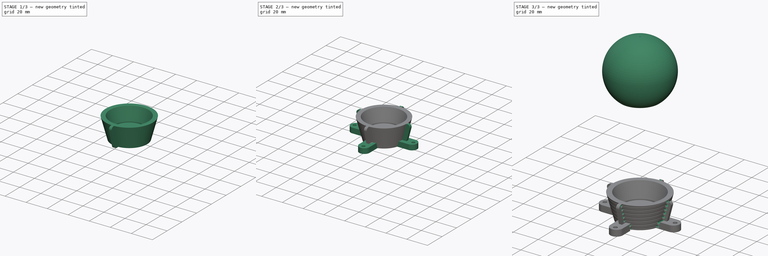
[diagram: build sequence overview — one tinted view per stage of 3, left to right]
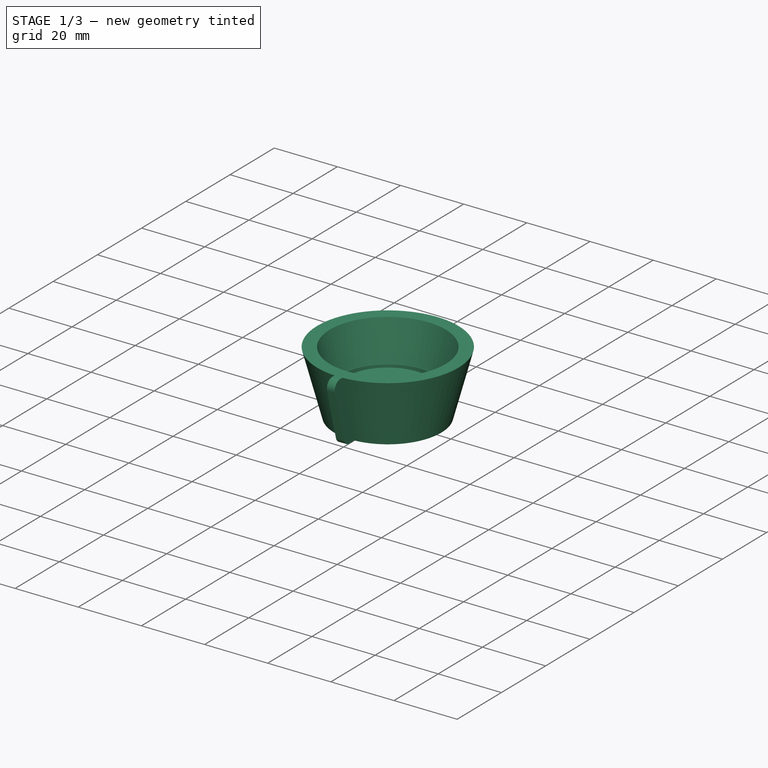
[diagram: stage 1 of 3 — iso view after this stage's code; geometry added in this stage tinted green]
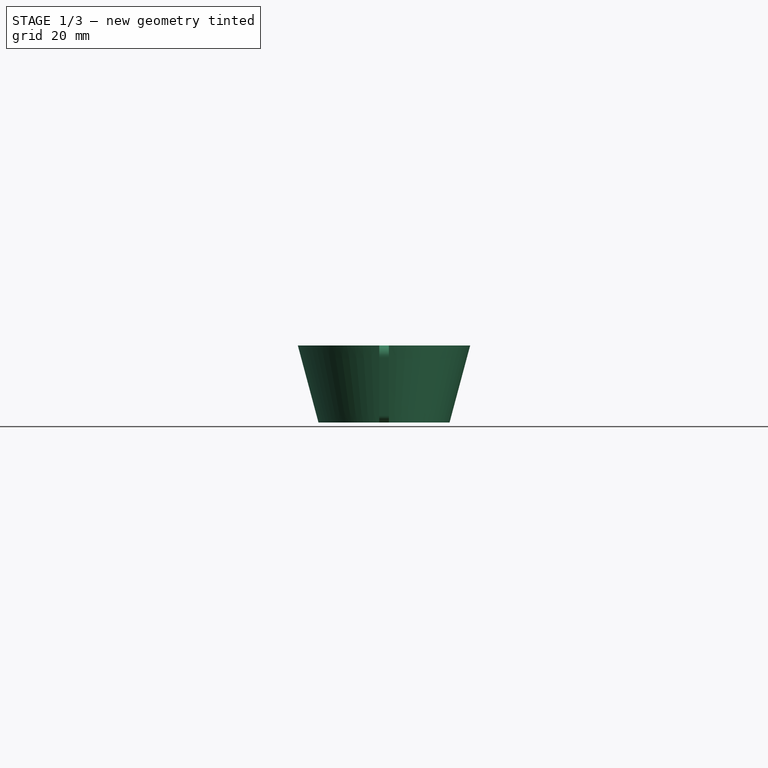
[diagram: stage 1 of 3 — front view after this stage's code; geometry added in this stage tinted green]
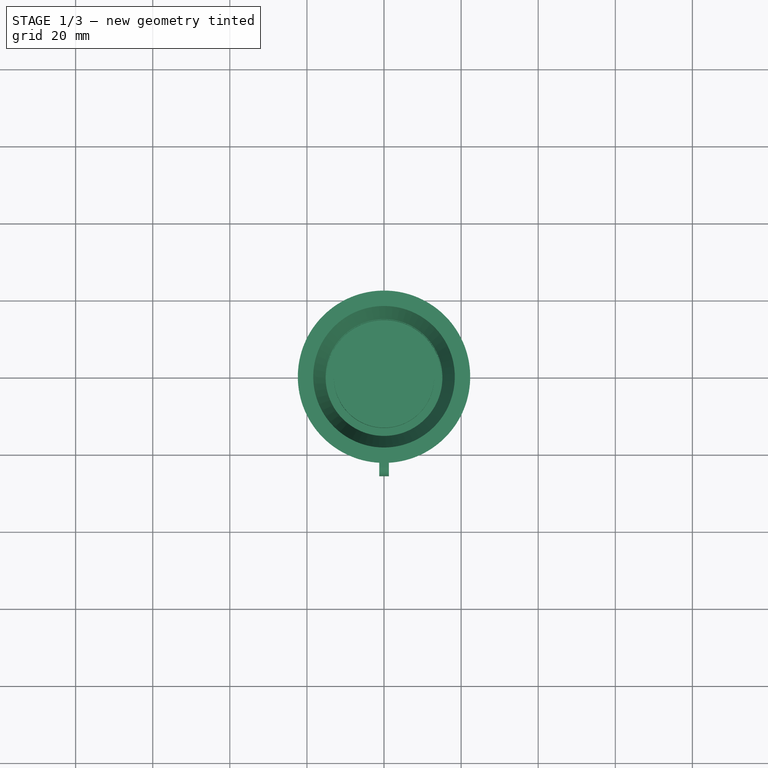
[diagram: stage 1 of 3 — top view after this stage's code; geometry added in this stage tinted green]
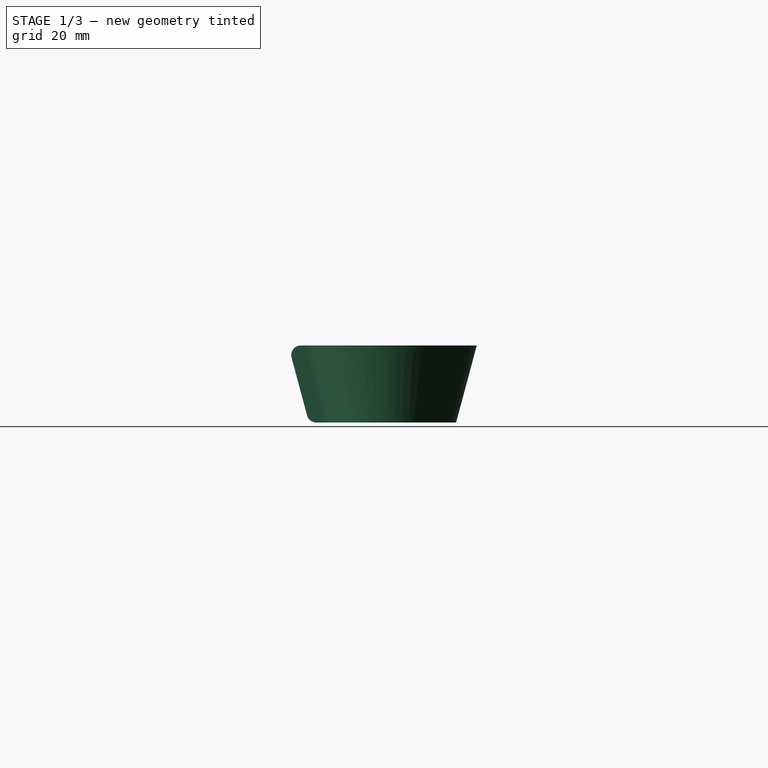
[diagram: stage 1 of 3 — right view after this stage's code; geometry added in this stage tinted green]
FCSTD DOCUMENT  (FreeCAD 0.21R33694 (Git))
Label: tc
License: All rights reserved
LicenseURL: https://en.wikipedia.org/wiki/All_rights_reserved
objects: Sketcher::SketchObject×6, PartDesign::Revolution×2, PartDesign::Body×2, PartDesign::Pad×2, PartDesign::PolarPattern×1, PartDesign::Pocket×1, PartDesign::SubtractiveHelix×1
note: 21 computed .brp shape members not serialized (recipe doc carries the construction recipe); baked Part::Feature solids carry a one-line shape summary decoded from their .brp

FEATURE [PartDesign::Body] Body  label="topload"
  Group = -> [Sketch,Revolution]
  Origin = -> Origin
  Tip = -> Revolution
FEATURE [Sketcher::SketchObject] Sketch001
  FullyConstrained = true
  MapMode = 5
  Placement = pos=(0,0,0) rot=(1,0,0;1.5708rad)
  Support = -> [XZ_Plane001]
  sketch-geometry (1):
    g0: Circle CenterX=-18 CenterY=-108 CenterZ=0 NormalX=0 NormalY=0 NormalZ=1 AngleXU=0 Radius=1.1
  constraints (3):
    c: Diameter(g0) = 2.2
    c: Distance(g0,g-2) = 18
    c: Distance(g0,g-1) = 108
FEATURE [Sketcher::SketchObject] Sketch002
  FullyConstrained = true
  MapMode = 5
  Placement = pos=(0,0,0) rot=(1,0,0;1.5708rad)
  Support = -> [XZ_Plane001]
  sketch-geometry (10):
    g0: LineSegment StartX=-18.359 StartY=-88 StartZ=0 EndX=-22.359 EndY=-88 EndZ=0
    g1: LineSegment StartX=0 StartY=-108 StartZ=0 EndX=-17 EndY=-108 EndZ=0
    g2: LineSegment StartX=-17 StartY=-108 StartZ=0 EndX=-22.359 EndY=-88 EndZ=0
    g3: LineSegment StartX=0 StartY=-108 StartZ=0 EndX=0 EndY=-100 EndZ=0
    g4: LineSegment StartX=-18.359 StartY=-88 StartZ=0 EndX=-15.1436 EndY=-100 EndZ=0
    g5: LineSegment StartX=-15.1436 StartY=-100 StartZ=0 EndX=-15 EndY=-100 EndZ=0
    g6: LineSegment StartX=-15 StartY=-100 StartZ=0 EndX=-15 EndY=-105 EndZ=0
    g7: LineSegment StartX=-15 StartY=-105 StartZ=0 EndX=-13 EndY=-105 EndZ=0
    g8: LineSegment StartX=-13 StartY=-105 StartZ=0 EndX=-13 EndY=-100 EndZ=0
    g9: LineSegment StartX=-13 StartY=-100 StartZ=0 EndX=0 EndY=-100 EndZ=0
  constraints (30):
    c: Horizontal(g0)
    c: Horizontal(g1)
    c: Coincident(g2,g1)
    c: Coincident(g2,g0)
    c: Coincident(g3,g1)
    c: Vertical(g3)
    c: Distance(g1) = 17
    c: Angle(g1,g2) = 1.8326
    c: Coincident(g5,g4)
    c: Horizontal(g5)
    c: Coincident(g6,g5)
    c: Vertical(g6)
    c: Horizontal(g7)
    c: Coincident(g8,g7)
    c: Vertical(g8)
    c: Coincident(g9,g8)
    c: Horizontal(g9)
    c: Coincident(g0,g4)
    c: Coincident(g3,g9)
    c: DistanceY(g1,g0) = 20
    c: Distance(g0) = 4
    c: Parallel(g2,g4)
    c: PointOnObject(g3,g-2)
    c: Distance(g5,g-2) = 15
    c: Distance(g4,g1) = 8
    c: Distance(g3) = 8
    c: Coincident(g7,g6)
    c: Distance(g6,g7) = 2
    c: Distance(g8) = 5
    c: Distance(g3,g-1) = 100
FEATURE [PartDesign::Revolution] Revolution001
  Angle = 360
  Axis = (0,-2e-16,1)
  Base = (0,0,0)
  Placement = pos=(0,0,0) rot=(1,0,0;1.5708rad)
  Profile = -> Sketch002
  ReferenceAxis = -> Sketch002 [V_Axis]
FEATURE [Sketcher::SketchObject] Sketch003
  FullyConstrained = true
  MapMode = 5
  Placement = pos=(0,0,0) rot=(0.57735,0.57735,0.57735;2.0944rad)
  Support = -> [YZ_Plane001]
  sketch-geometry (6):
    g0: LineSegment StartX=-21.359 StartY=-88 StartZ=0 EndX=-16 EndY=-108 EndZ=0
    g1: LineSegment StartX=-21.359 StartY=-88 StartZ=0 EndX=-23.2773 EndY=-88 EndZ=0
    g2: LineSegment StartX=-16 StartY=-108 StartZ=0 EndX=-19.2581 EndY=-108 EndZ=0
    g3: LineSegment StartX=-25.6921 StartY=-91.147 StartZ=0 EndX=-21.6729 EndY=-106.147 EndZ=0
    g4: ArcOfCircle CenterX=-23.2773 CenterY=-90.5 CenterZ=0 NormalX=0 NormalY=0 NormalZ=1 AngleXU=0 Radius=2.5 StartAngle=1.5708 EndAngle=3.40339
    g5: ArcOfCircle CenterX=-19.2581 CenterY=-105.5 CenterZ=0 NormalX=0 NormalY=0 NormalZ=1 AngleXU=0 Radius=2.5 StartAngle=3.40339 EndAngle=4.71239
  constraints (16):
    c: Distance(g0,g-2) = 16
    c: Distance(g0,g-1) = 108
    c: Angle(g-2,g0) = 0.261799
    c: Coincident(g1,g0)
    c: Horizontal(g1)
    c: Coincident(g2,g0)
    c: Horizontal(g2)
    c: Parallel(g0,g3)
    c: Tangent(g3,g4) = -1.5708
    c: Tangent(g1,g4) = -1.5708
    c: Tangent(g2,g5) = 1.5708
    c: Tangent(g3,g5) = -1.5708
    c: Diameter(g4) = 5
    c: Diameter(g5) = 5
    c: Distance(g3,g0) = 5
    c: Distance(g0,g2) = 20
FEATURE [PartDesign::Pad] Pad
  BaseFeature = -> Revolution001
  Direction = (1,-2e-16,3e-16)
  Length = 2.5
  Length2 = 10
  Midplane = true
  Placement = pos=(0,0,0) rot=(1,0,0;1.5708rad)
  Profile = -> Sketch003
  ReferenceAxis = -> Sketch003 [N_Axis]
  Type = 0
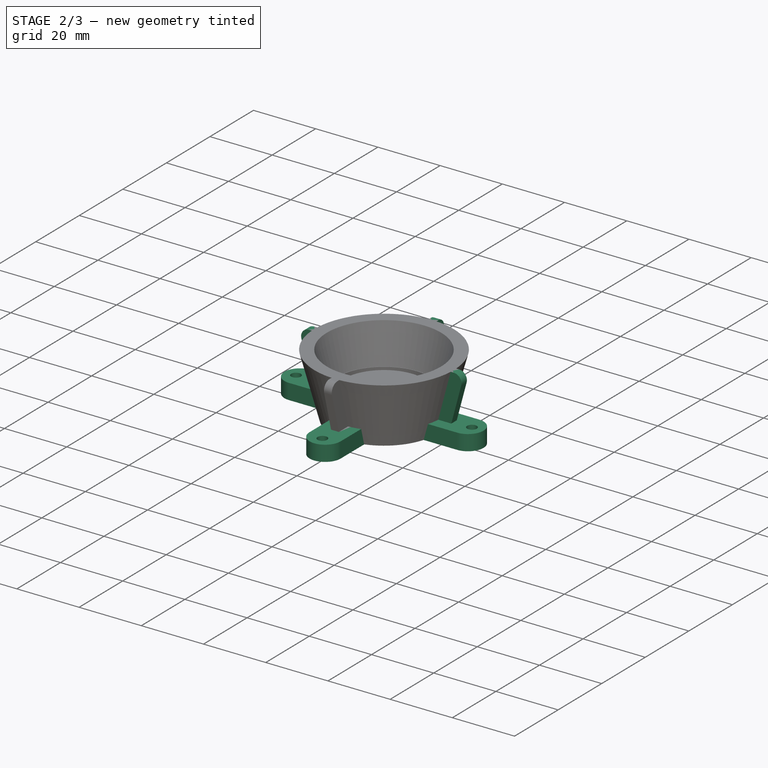
[diagram: stage 2 of 3 — iso view after this stage's code; geometry added in this stage tinted green]
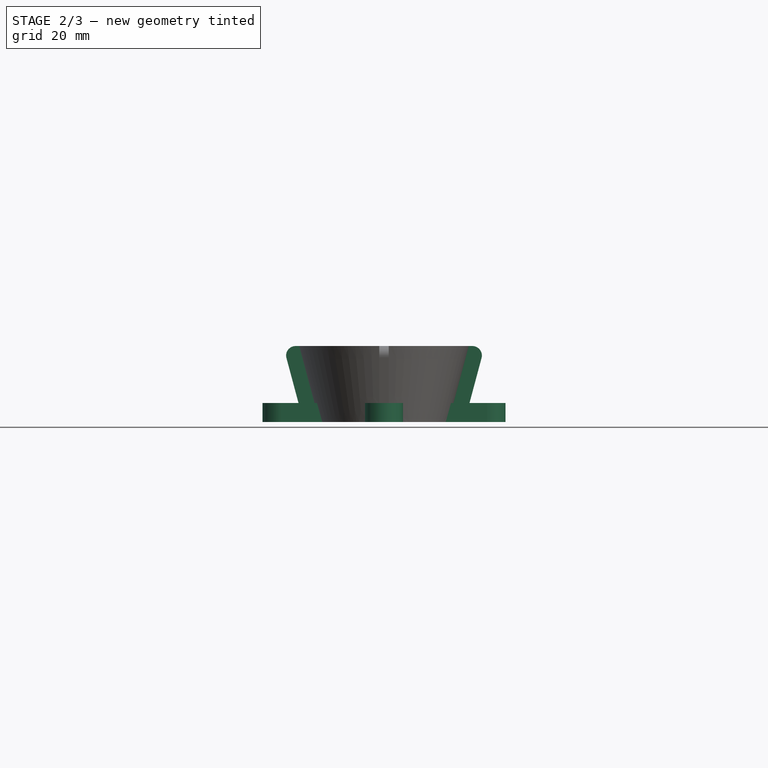
[diagram: stage 2 of 3 — front view after this stage's code; geometry added in this stage tinted green]
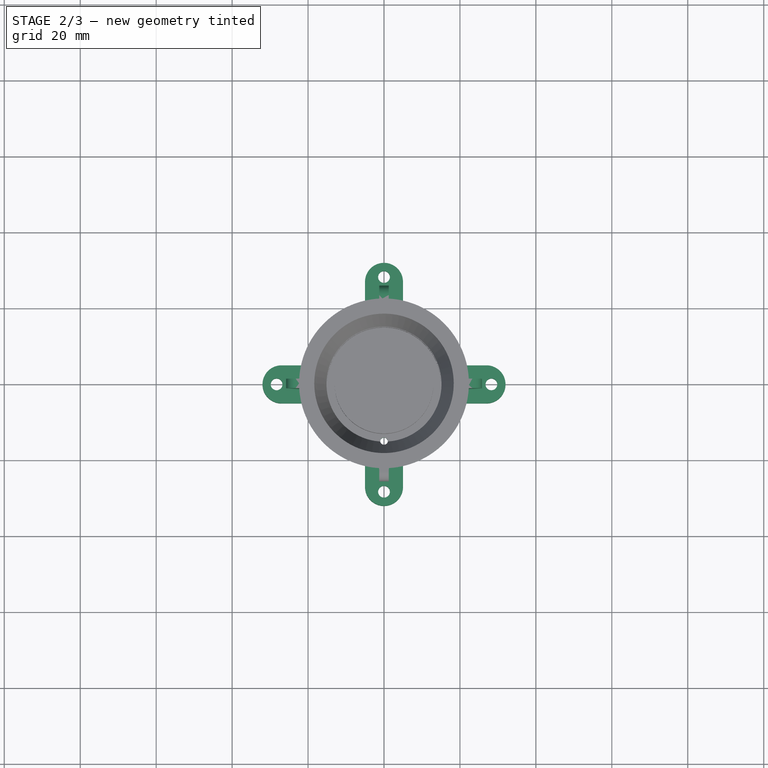
[diagram: stage 2 of 3 — top view after this stage's code; geometry added in this stage tinted green]
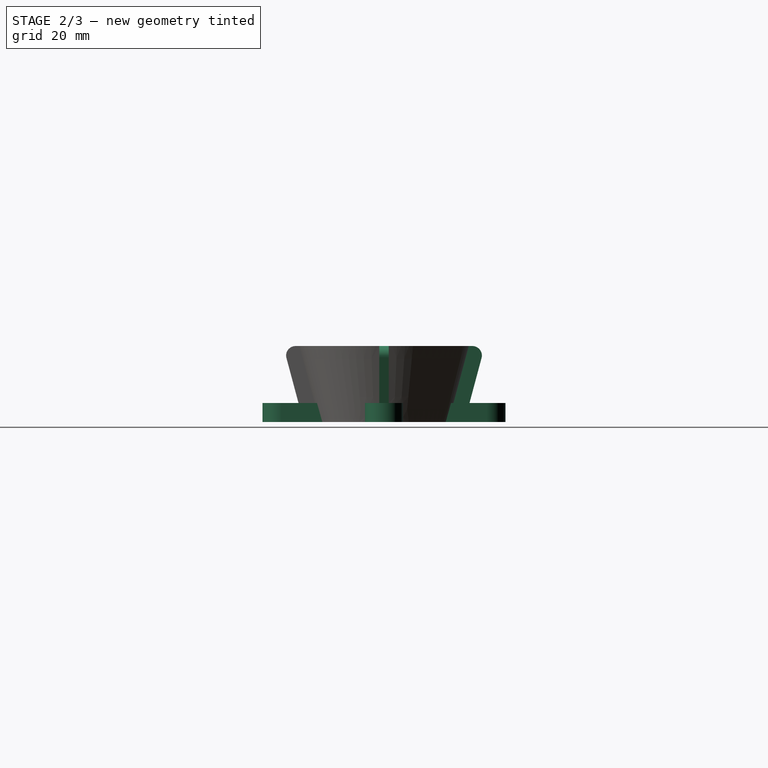
[diagram: stage 2 of 3 — right view after this stage's code; geometry added in this stage tinted green]
FEATURE [Sketcher::SketchObject] Sketch004
  AttachmentOffset = pos=(0,0,-108) rot=(0,0,1;0rad)
  FullyConstrained = true
  MapMode = 5
  Placement = pos=(0,0,-108) rot=(0,0,1;0rad)
  Support = -> [XY_Plane001]
  sketch-geometry (6):
    g0: Circle CenterX=2.4e-15 CenterY=-28.28 CenterZ=0 NormalX=0 NormalY=0 NormalZ=1 AngleXU=0 Radius=1.55
    g1: LineSegment StartX=0 StartY=0 StartZ=0 EndX=2.4e-15 EndY=-28.28 EndZ=0
    g2: ArcOfCircle CenterX=2.3e-15 CenterY=-27 CenterZ=0 NormalX=0 NormalY=0 NormalZ=1 AngleXU=0 Radius=5 StartAngle=3.14159 EndAngle=6.28319
    g3: LineSegment StartX=-5 StartY=-16.2481 StartZ=0 EndX=-5 EndY=-27 EndZ=0
    g4: LineSegment StartX=5 StartY=-27 StartZ=0 EndX=5 EndY=-16.2481 EndZ=0
    g5: LineSegment StartX=-5 StartY=-16.2481 StartZ=0 EndX=5 EndY=-16.2481 EndZ=0
  constraints (16):
    c: Diameter(g0) = 3.1
    c: Distance(g0,g-1) = 28.28
    c: Coincident(g1,g-1)
    c: Coincident(g0,g1)
    c: Angle(g1,g-1) = 1.5708
    c: Tangent(g3,g2) = -1.5708
    c: Tangent(g2,g4) = -1.5708
    c: PointOnObject(g2,g1)
    c: Diameter(g2) = 10
    c: Distance(g2,g1) = 27
    c: Horizontal(g5)
    c: Coincident(g4,g5)
    c: Coincident(g3,g5)
    c: Distance(g5) = 10
    c: Distance(g1,g4) = 17
    c: Distance(g1,g3) = 17
FEATURE [PartDesign::Pad] Pad001
  BaseFeature = -> Pad
  Direction = (0,0,1)
  Length = 5
  Length2 = 10
  Placement = pos=(0,0,0) rot=(1,0,0;1.5708rad)
  Profile = -> Sketch004
  ReferenceAxis = -> Sketch004 [N_Axis]
  Type = 0
FEATURE [PartDesign::PolarPattern] PolarPattern
  Angle = 360
  Axis = -> Z_Axis001
  BaseFeature = -> Pad001
  Occurrences = 4
  Originals = -> [Pad,Pad001]
  Placement = pos=(0,0,0) rot=(1,0,0;1.5708rad)
FEATURE [Sketcher::SketchObject] Sketch005
  FullyConstrained = true
  MapMode = 5
  Support = -> [XY_Plane001]
  sketch-geometry (1):
    g0: Circle CenterX=0 CenterY=-15 CenterZ=0 NormalX=0 NormalY=0 NormalZ=1 AngleXU=0 Radius=1
  constraints (3):
    c: PointOnObject(g0,g-2)
    c: Distance(g-1,g0) = 15
    c: Diameter(g0) = 2
FEATURE [PartDesign::Pocket] Pocket
  BaseFeature = -> PolarPattern
  Direction = (0,0,-1)
  Length = 200
  Length2 = 5
  Placement = pos=(0,0,0) rot=(1,0,0;1.5708rad)
  Profile = -> Sketch005
  ReferenceAxis = -> Sketch005 [N_Axis]
  Type = 0
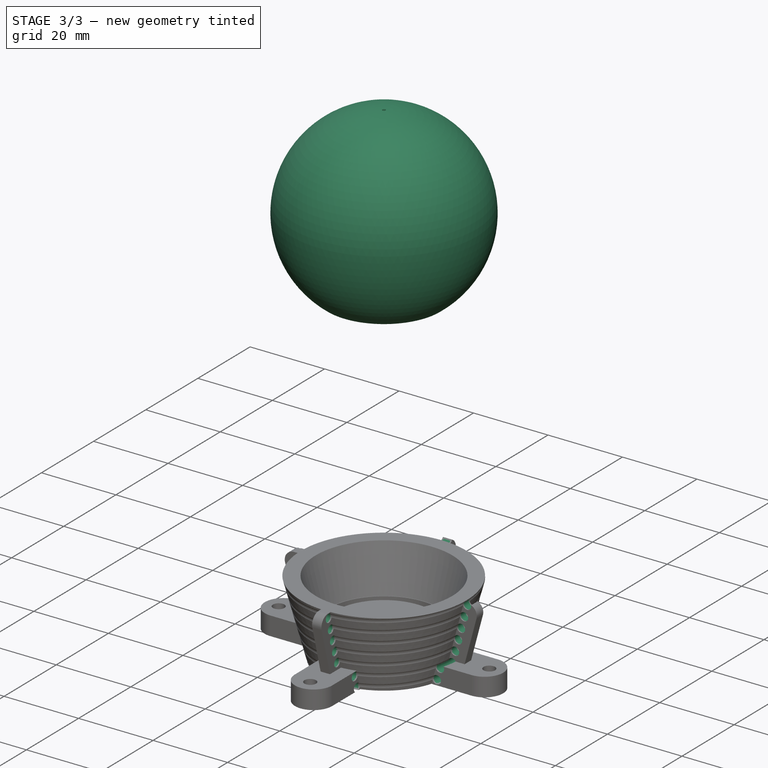
[diagram: stage 3 of 3 — iso view after this stage's code; geometry added in this stage tinted green]
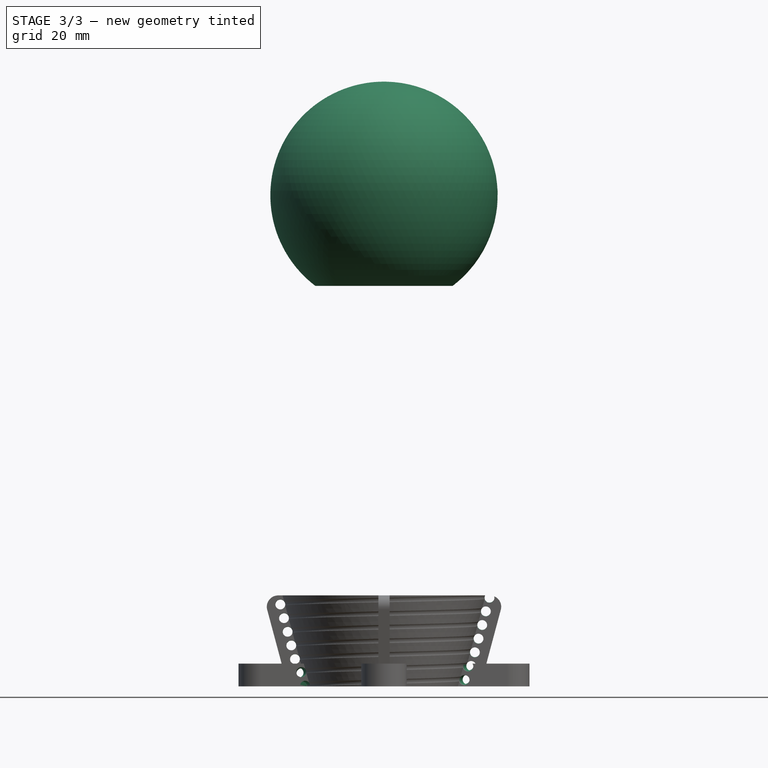
[diagram: stage 3 of 3 — front view after this stage's code; geometry added in this stage tinted green]
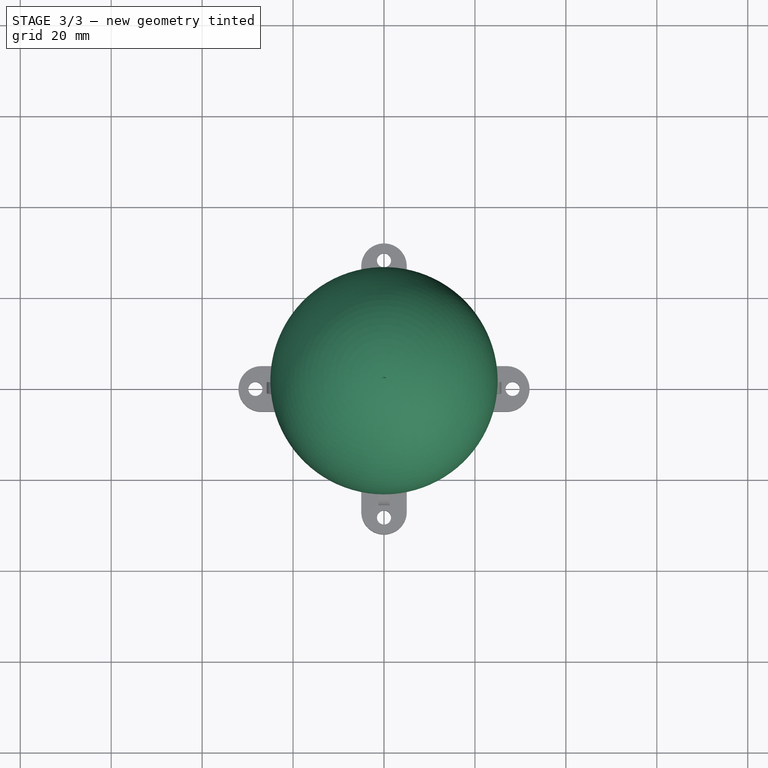
[diagram: stage 3 of 3 — top view after this stage's code; geometry added in this stage tinted green]
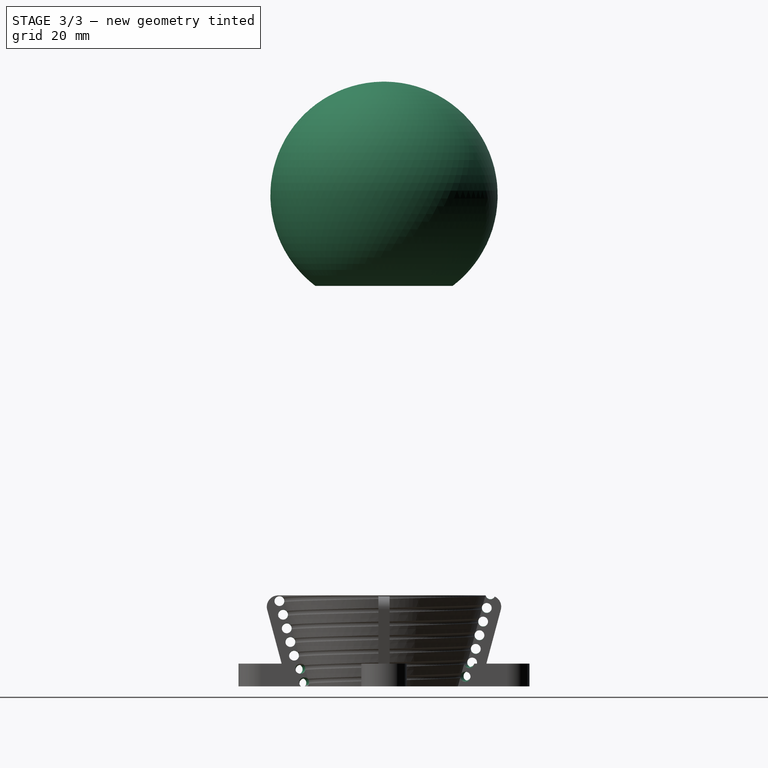
[diagram: stage 3 of 3 — right view after this stage's code; geometry added in this stage tinted green]
FEATURE [Sketcher::SketchObject] Sketch
  FullyConstrained = true
  MapMode = 5
  Placement = pos=(0,0,0) rot=(1,0,0;1.5708rad)
  Support = -> [XZ_Plane]
  sketch-geometry (10):
    g0: Circle CenterX=0 CenterY=0 CenterZ=0 NormalX=0 NormalY=0 NormalZ=1 AngleXU=0 Radius=25
    g1: LineSegment StartX=-15.1 StartY=-19.9246 StartZ=0 EndX=15.1 EndY=-19.9246 EndZ=0
    g2: LineSegment StartX=-13.1 StartY=-19.9246 StartZ=0 EndX=-13.1 EndY=-9.92461 EndZ=0
    g3: LineSegment StartX=-13.1 StartY=-9.92461 StartZ=0 EndX=-15.1 EndY=-9.92461 EndZ=0
    g4: LineSegment StartX=-15.1 StartY=-9.92461 StartZ=0 EndX=-15.1 EndY=-19.9246 EndZ=0
    g5: LineSegment StartX=0 StartY=-19.9246 StartZ=0 EndX=0 EndY=14.9968 EndZ=0
    g6: ArcOfCircle CenterX=0 CenterY=0 CenterZ=0 NormalX=0 NormalY=0 NormalZ=1 AngleXU=0 Radius=25 StartAngle=1.5868 EndAngle=4.06388
    g7: LineSegment StartX=-13.1 StartY=-19.9246 StartZ=0 EndX=0 EndY=-19.9246 EndZ=0
    g8: LineSegment StartX=-0.4 StartY=24.9968 StartZ=0 EndX=-0.4 EndY=14.9968 EndZ=0
    g9: LineSegment StartX=-0.4 StartY=14.9968 StartZ=0 EndX=0 EndY=14.9968 EndZ=0
  constraints (31):
    c: Coincident(g0,g-1)
    c: Diameter(g0) = 50
    c: PointOnObject(g1,g0)
    c: PointOnObject(g1,g0)
    c: Horizontal(g1)
    c: Distance(g1) = 30.2
    c: Coincident(g2,g3)
    c: Coincident(g3,g4)
    c: Horizontal(g3)
    c: Vertical(g2)
    c: Vertical(g4)
    c: Distance(g3) = 2
    c: Distance(g2) = 10
    c: Vertical(g5)
    c: Coincident(g6,g0)
    c: Horizontal(g7)
    c: PointOnObject(g7,g5)
    c: PointOnObject(g6,g1)
    c: PointOnObject(g5,g1)
    c: Coincident(g4,g6)
    c: Coincident(g2,g7)
    c: PointOnObject(g7,g1)
    c: Vertical(g8)
    c: Coincident(g9,g8)
    c: Horizontal(g9)
    c: Distance(g8) = 10
    c: Distance(g9) = 0.4
    c: Coincident(g5,g9)
    c: Coincident(g6,g8)
    c: Distance(g6,g-2) = 0.4
    c: Distance(g6,g6) = 25
FEATURE [PartDesign::Revolution] Revolution
  Angle = 360
  Axis = (0,-2e-16,1)
  Base = (0,0,0)
  Placement = pos=(0,0,0) rot=(1,0,0;1.5708rad)
  Profile = -> Sketch
  ReferenceAxis = -> Sketch [V_Axis]
FEATURE [PartDesign::SubtractiveHelix] SubtractiveHelix
  Angle = 15
  Axis = (0,-2e-16,1)
  Base = (0,0,0)
  BaseFeature = -> Pocket
  Growth = 0.803848
  HasBeenEdited = true
  Height = 21
  LeftHanded = false
  Mode = 1
  Outside = false
  Pitch = 3
  Placement = pos=(0,0,0) rot=(1,0,0;1.5708rad)
  Profile = -> Sketch001
  ReferenceAxis = -> Sketch001 [V_Axis]
  Turns = 7
FEATURE [PartDesign::Body] Body001  label="primary"
  Group = -> [Sketch001,Sketch002,Revolution001,Sketch003,Sketch005,Pad,Pad001,Sketch004,PolarPattern,Pocket,SubtractiveHelix]
  Origin = -> Origin001
  Tip = -> SubtractiveHelix
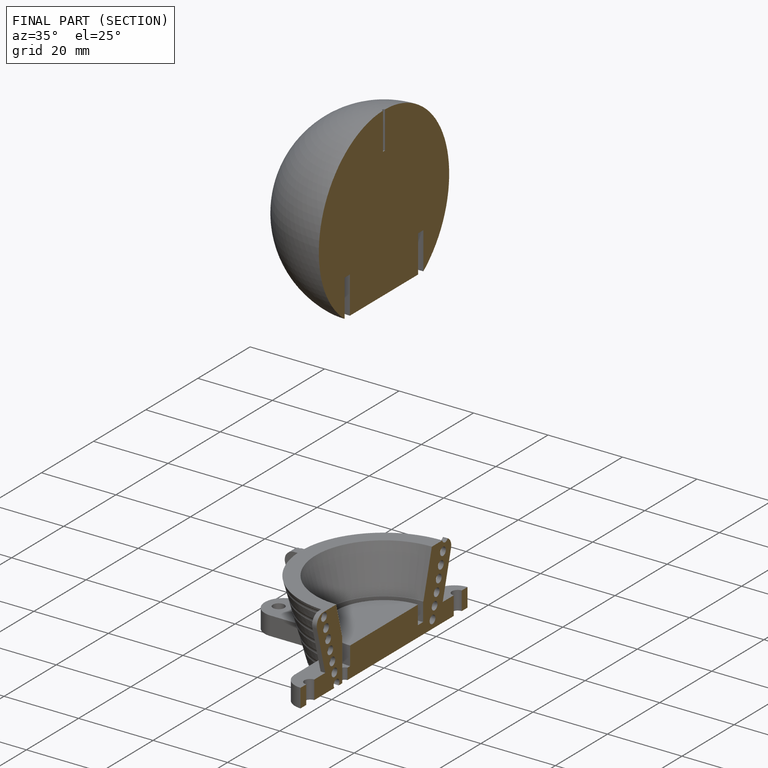
[diagram: finished part — half-section view (interior)]
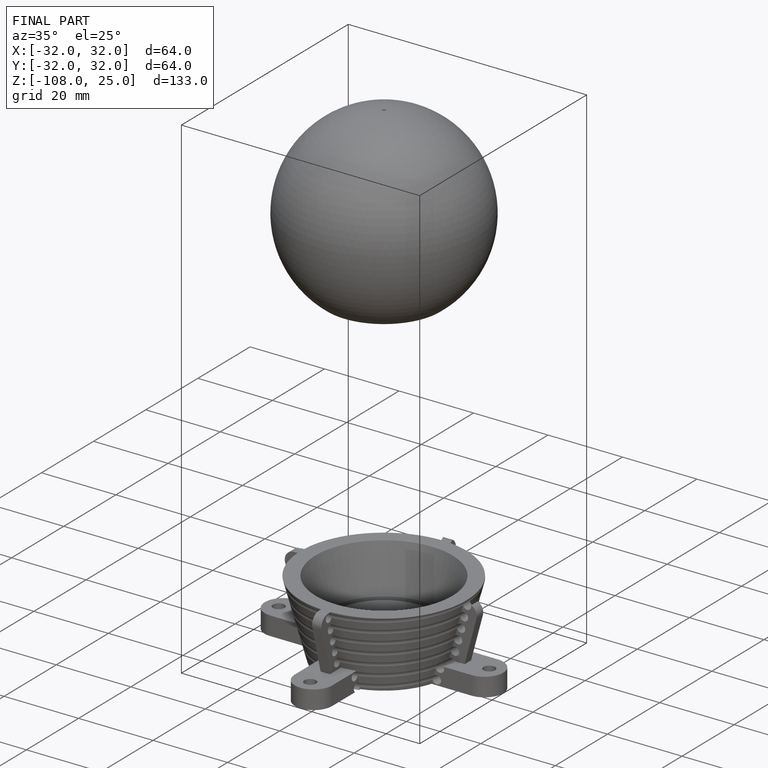
[diagram: finished part — iso view with bounding-box wireframe]
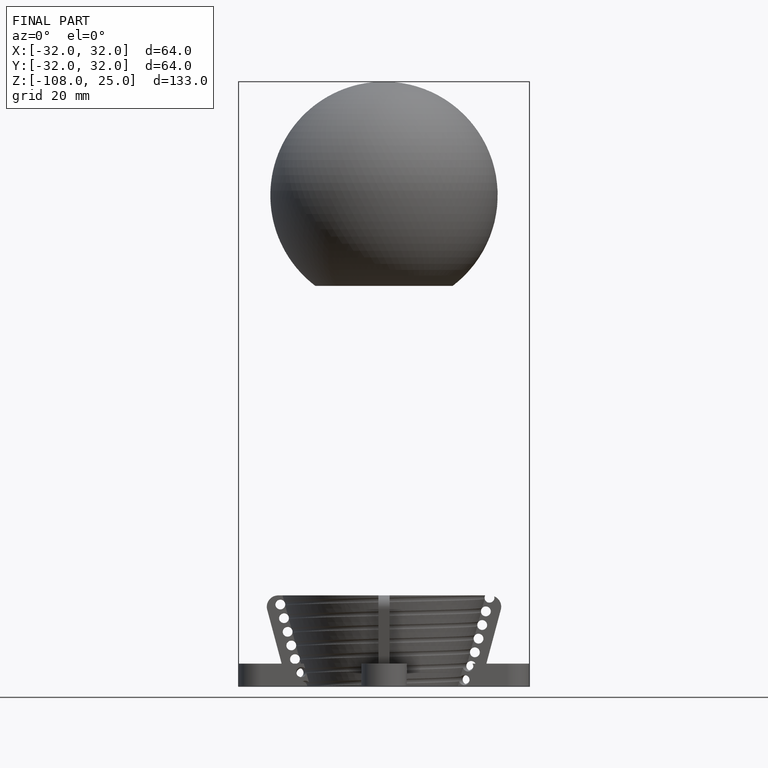
[diagram: finished part — front view with bounding-box wireframe]
